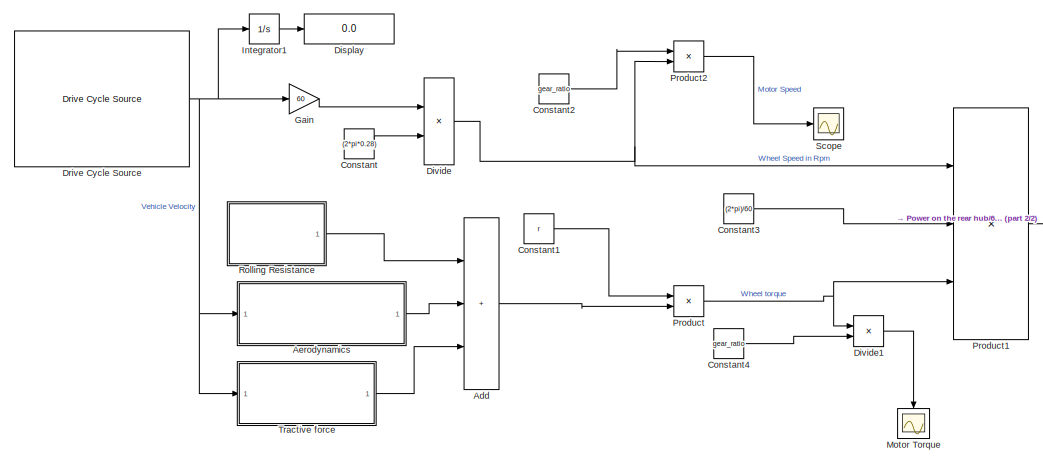
[diagram: root canvas - part 1/2, left side, full height]
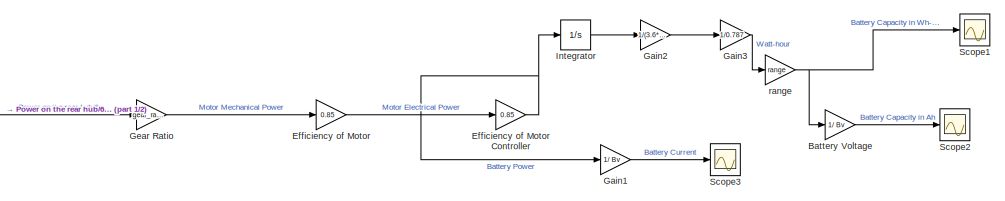
[diagram: root canvas - part 2/2, middle right region]
MODEL slx_36905b025ceb
KIND model
CONFIG AbsTol = auto
CONFIG EnableMultiTasking = off
CONFIG FixedStep = auto
CONFIG MaxStep = auto
CONFIG MinStep = auto
CONFIG RelTol = 1e-3
CONFIG SampleTimeConstraint = Unconstrained
CONFIG Solver = VariableStepAuto
CONFIG SolverName = VariableStepAuto
CONFIG StartTime = 0.0
CONFIG StopTime = 2474
BLOCK [Sum] Add
  IconShape = rectangular
  Inputs = 3
  Ports = [3, 1]
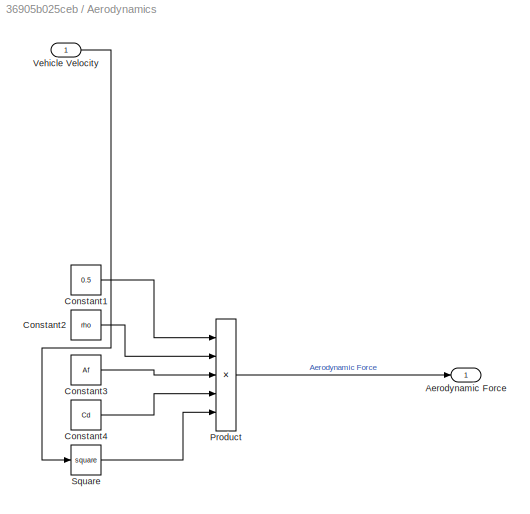
BLOCK [SubSystem] Aerodynamics
  Ports = [1, 1]
  RequestExecContextInheritance = off
BLOCK [Outport] Aerodynamics/Aerodynamic Force
BLOCK [Constant] Aerodynamics/Constant1
  Value = 0.5
BLOCK [Constant] Aerodynamics/Constant2
  Value = rho
BLOCK [Constant] Aerodynamics/Constant3
  Value = Af
BLOCK [Constant] Aerodynamics/Constant4
  Value = Cd
BLOCK [Product] Aerodynamics/Product
  Inputs = 5
  Ports = [5, 1]
BLOCK [Math] Aerodynamics/Square
  Operator = square
  Ports = [1, 1]
BLOCK [Inport] Aerodynamics/Vehicle Velocity
BLOCK [Gain] Battery Voltage
  Gain = 1/ Bv
BLOCK [Constant] Constant
  Value = (2*pi*0.28)
BLOCK [Constant] Constant1
  Value = r
BLOCK [Constant] Constant2
  Value = gear_ratio
BLOCK [Constant] Constant3
  Value = (2*pi)/60
BLOCK [Constant] Constant4
  Value = gear_ratio
BLOCK [Display] Display
  Decimation = 1
  Ports = [1]
BLOCK [Product] Divide
  Inputs = */
  Ports = [2, 1]
BLOCK [Product] Divide1
  Inputs = */
  Ports = [2, 1]
BLOCK [Reference] Drive Cycle Source  REF=autolibshared/Drive Cycle Source
  AttributesFormatString = %<cycleVar> (%<tfinal>)
  Ports = [0, 1]
  SourceBlock = autolibshared/Drive Cycle Source
  SourceProductBaseCode = PW,MT,VE,VP
  SourceType = Drive Cycle Source
BLOCK [Gain] Efficiency of Motor
  Gain = 0.85
BLOCK [Gain] Efficiency of Motor Controller
  Gain = 0.85
BLOCK [Gain] Gain
  Gain = 60
BLOCK [Gain] Gain1
  Gain = 1/ Bv
BLOCK [Gain] Gain2
  Gain = 1/(3.6*1000)
BLOCK [Gain] Gain3
  Gain = 1/0.787
BLOCK [Gain] Gear Ratio
  Gain = gear_ratio
BLOCK [Integrator] Integrator
  Ports = [1, 1]
BLOCK [Integrator] Integrator1
  Ports = [1, 1]
BLOCK [Scope] Motor Torque
  Floating = off
  NameLocation = left
  NumInputPorts = 1
  Ports = [1]
  ScopeSpecificationString = Simulink.scopes.TimeScopeBlockCfg('CurrentConfiguration', extmgr.ConfigurationSet(extmgr.Configuration('Core','General UI',true),extmgr.Configuration('Core','Source UI',true),extmgr.Configuration('Sources','WiredSimulink',true,'DataLoggingVariableName','ScopeData1'),extmgr.Configuration('Visuals','Time Domain',true,'SerializedDisplays',{struct('MinYLimReal','-31.80054','MaxYLimReal','33.94014','YL...<+1427ch>
BLOCK [Product] Product
  Ports = [2, 1]
BLOCK [Product] Product1
  Inputs = 3
  Ports = [3, 1]
BLOCK [Product] Product2
  Ports = [2, 1]
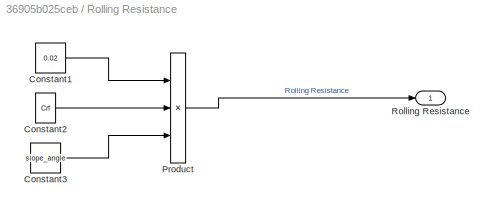
BLOCK [SubSystem] Rolling Resistance
  Ports = [0, 1]
  RequestExecContextInheritance = off
BLOCK [Constant] Rolling Resistance/Constant1
  Value = 0.02
BLOCK [Constant] Rolling Resistance/Constant2
  Value = Crf
BLOCK [Constant] Rolling Resistance/Constant3
  Value = slope_angle
BLOCK [Product] Rolling Resistance/Product
  Inputs = 3
  Ports = [3, 1]
BLOCK [Outport] Rolling Resistance/Rolling Resistance
BLOCK [Scope] Scope
  Floating = off
  NumInputPorts = 1
  Ports = [1]
  ScopeSpecificationString = Simulink.scopes.TimeScopeBlockCfg('CurrentConfiguration', extmgr.ConfigurationSet(extmgr.Configuration('Core','General UI',true),extmgr.Configuration('Core','Source UI',true),extmgr.Configuration('Sources','WiredSimulink',true),extmgr.Configuration('Visuals','Time Domain',true,'SerializedDisplays',{struct('MinYLimReal','-432.2279','MaxYLimReal','3890.05111','YLabelReal','','MinYLimMag',' 0.00000',...<+1347ch>
BLOCK [Scope] Scope1
  Floating = off
  NumInputPorts = 1
  Ports = [1]
  ScopeSpecificationString = Simulink.scopes.TimeScopeBlockCfg('CurrentConfiguration', extmgr.ConfigurationSet(extmgr.Configuration('Core','General UI',true),extmgr.Configuration('Core','Source UI',true),extmgr.Configuration('Sources','WiredSimulink',true,'DataLoggingVariableName','ScopeData2'),extmgr.Configuration('Visuals','Time Domain',true,'SerializedDisplays',{struct('MinYLimReal','-2630.41218','MaxYLimReal','23673.70963...<+1410ch>
BLOCK [Scope] Scope2
  Floating = off
  NumInputPorts = 1
  Ports = [1]
  ScopeSpecificationString = Simulink.scopes.TimeScopeBlockCfg('CurrentConfiguration', extmgr.ConfigurationSet(extmgr.Configuration('Core','General UI',true),extmgr.Configuration('Core','Source UI',true),extmgr.Configuration('Sources','WiredSimulink',true,'DataLoggingVariableName','ScopeData3'),extmgr.Configuration('Visuals','Time Domain',true,'SerializedDisplays',{struct('MinYLimReal','-36.5335','MaxYLimReal','328.80152','YL...<+1389ch>
BLOCK [Scope] Scope3
  Floating = off
  NumInputPorts = 1
  Ports = [1]
  ScopeSpecificationString = Simulink.scopes.TimeScopeBlockCfg('CurrentConfiguration', extmgr.ConfigurationSet(extmgr.Configuration('Core','General UI',true),extmgr.Configuration('Core','Source UI',true),extmgr.Configuration('Sources','WiredSimulink',true,'DataLoggingVariableName','ScopeData4'),extmgr.Configuration('Visuals','Time Domain',true,'SerializedDisplays',{struct('MinYLimReal','-210.3865','MaxYLimReal','277.66185','Y...<+1386ch>
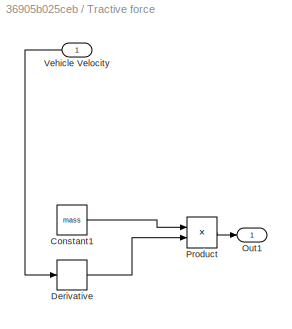
BLOCK [SubSystem] Tractive force
  Ports = [1, 1]
  RequestExecContextInheritance = off
BLOCK [Constant] Tractive force/Constant1
  Value = mass
BLOCK [Derivative] Tractive force/Derivative
BLOCK [Outport] Tractive force/Out1
BLOCK [Product] Tractive force/Product
  Ports = [2, 1]
BLOCK [Inport] Tractive force/Vehicle Velocity
BLOCK [Gain] range
  Gain = range
LINE Add:1 -> Product:2
LINE Aerodynamics/Constant1:1 -> Aerodynamics/Product:1
LINE Aerodynamics/Constant2:1 -> Aerodynamics/Product:2
LINE Aerodynamics/Constant3:1 -> Aerodynamics/Product:3
LINE Aerodynamics/Constant4:1 -> Aerodynamics/Product:4
LINE Aerodynamics/Product:1 -> Aerodynamics/Aerodynamic Force:1
LINE Aerodynamics/Square:1 -> Aerodynamics/Product:5
LINE Aerodynamics/Vehicle Velocity:1 -> Aerodynamics/Square:1
LINE Aerodynamics:1 -> Add:2
LINE Battery Voltage:1 -> Scope2:1
LINE Constant1:1 -> Product:1
LINE Constant2:1 -> Product2:1
LINE Constant3:1 -> Product1:2
LINE Constant4:1 -> Divide1:2
LINE Constant:1 -> Divide:2
LINE Divide1:1 -> Motor Torque:1
NET Divide:1 -> Product1:1, Product2:2
NET Drive Cycle Source:1 -> Aerodynamics:1, Gain:1, Integrator1:1, Tractive force:1
NET Efficiency of Motor Controller:1 -> Gain1:1, Integrator:1
LINE Efficiency of Motor:1 -> Efficiency of Motor Controller:1
LINE Gain1:1 -> Scope3:1
LINE Gain2:1 -> Gain3:1
LINE Gain3:1 -> range:1
LINE Gain:1 -> Divide:1
LINE Gear Ratio:1 -> Efficiency of Motor:1
LINE Integrator1:1 -> Display:1
LINE Integrator:1 -> Gain2:1
LINE Product1:1 -> Gear Ratio:1
LINE Product2:1 -> Scope:1
NET Product:1 -> Divide1:1, Product1:3
LINE Rolling Resistance/Constant1:1 -> Rolling Resistance/Product:1
LINE Rolling Resistance/Constant2:1 -> Rolling Resistance/Product:2
LINE Rolling Resistance/Constant3:1 -> Rolling Resistance/Product:3
LINE Rolling Resistance/Product:1 -> Rolling Resistance/Rolling Resistance:1
LINE Rolling Resistance:1 -> Add:1
LINE Tractive force/Constant1:1 -> Tractive force/Product:1
LINE Tractive force/Derivative:1 -> Tractive force/Product:2
LINE Tractive force/Product:1 -> Tractive force/Out1:1
LINE Tractive force/Vehicle Velocity:1 -> Tractive force/Derivative:1
LINE Tractive force:1 -> Add:3
NET range:1 -> Battery Voltage:1, Scope1:1
note: NET lines group one-source signal fan-out (src -> all destinations, sorted); 1:1 wires keep LINE
